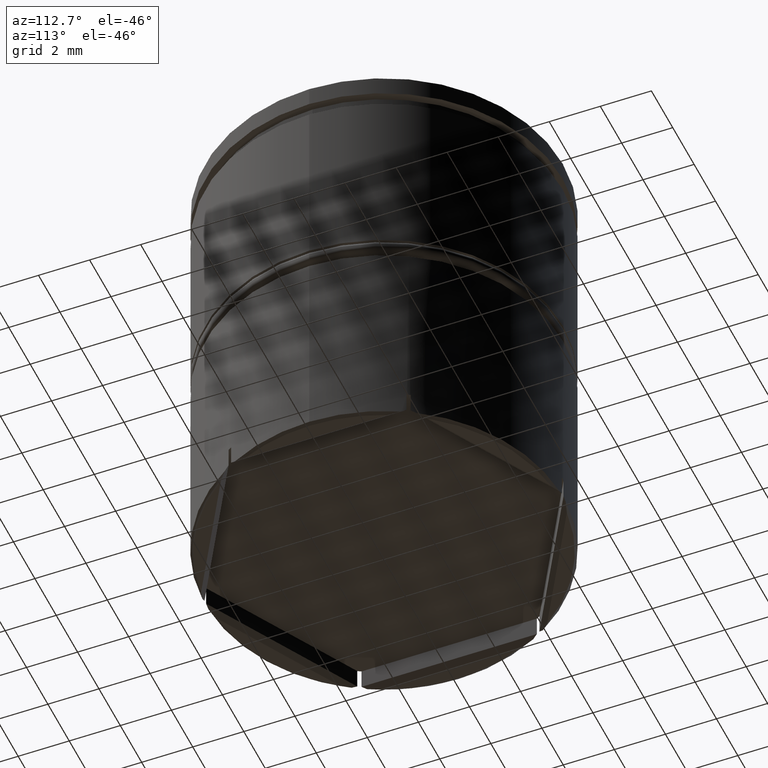
[diagram: clean part render]
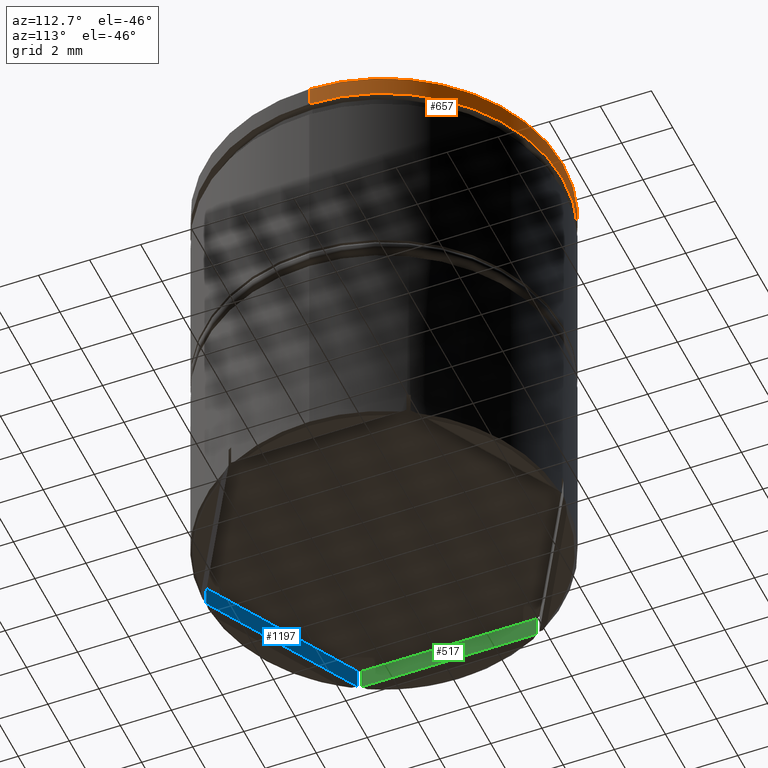
[diagram: same view with three faces highlighted in distinct colors, each labeled with its STEP entity id]
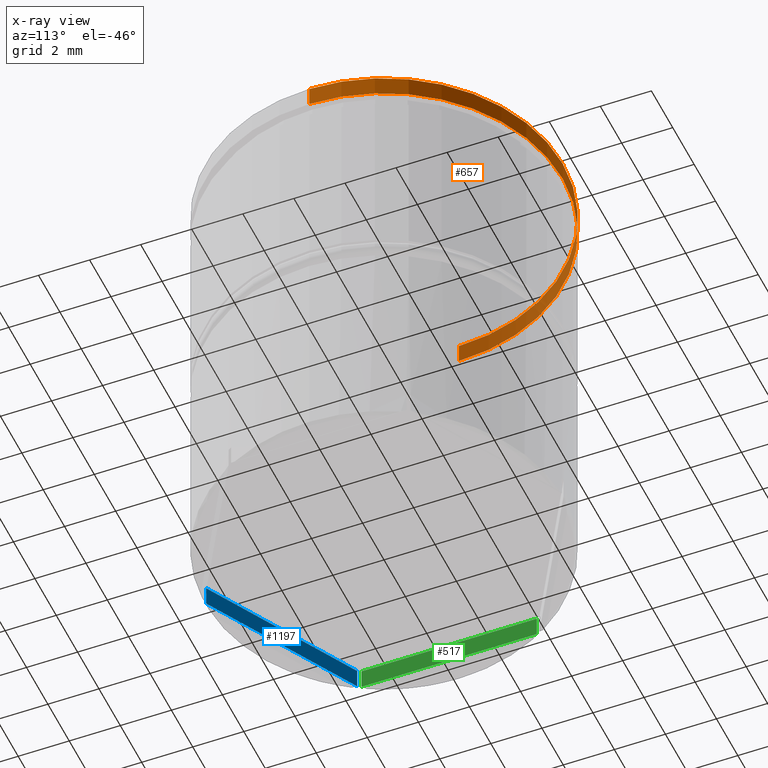
[diagram: x-ray of the same camera — body ghosted, the three highlighted faces saturated]
A machine part, auxiliary view with three faces highlighted in distinct colors.
The next image is the same camera in x-ray (body ghosted, the three faces saturated) — at least one of them is partly hidden behind the body in this view.
Their STEP definitions:

[orange] entity #657 — the highlighted cylindrical surface (partial cylindrical patch) has radius 7 mm, axis along (-0, -0, 1).
#87 = CARTESIAN_POINT ( 'NONE',  ( -7.000000000000000888, 8.572527594031474176E-16, -0.8749999999999998890 ) ) ;
#107 = DIRECTION ( 'NONE',  ( 1.000000000000000000, 0.000000000000000000, 0.000000000000000000 ) ) ;
#164 = ORIENTED_EDGE ( 'NONE', *, *, #1351, .T. ) ;
#196 = EDGE_CURVE ( 'NONE', #721, #1612, #749, .T. ) ;
#219 = CIRCLE ( 'NONE', #1160, 7.000000000000000888 ) ;
#247 = CARTESIAN_POINT ( 'NONE',  ( 0.000000000000000000, 0.000000000000000000, 0.000000000000000000 ) ) ;
#329 = VECTOR ( 'NONE', #365, 1000.000000000000000 ) ;
#342 = ORIENTED_EDGE ( 'NONE', *, *, #392, .T. ) ;
#358 = CARTESIAN_POINT ( 'NONE',  ( -7.000000000000000888, 8.572527594031474176E-16, 0.000000000000000000 ) ) ;
#365 = DIRECTION ( 'NONE',  ( -0.000000000000000000, -0.000000000000000000, 1.000000000000000000 ) ) ;
#392 = EDGE_CURVE ( 'NONE', #1361, #721, #1500, .T. ) ;
#430 = AXIS2_PLACEMENT_3D ( 'NONE', #247, #605, #107 ) ;
#456 = AXIS2_PLACEMENT_3D ( 'NONE', #529, #1283, #1158 ) ;
#529 = CARTESIAN_POINT ( 'NONE',  ( 0.000000000000000000, 0.000000000000000000, -0.1000000000000011297 ) ) ;
#605 = DIRECTION ( 'NONE',  ( -0.000000000000000000, -0.000000000000000000, 1.000000000000000000 ) ) ;
#609 = DIRECTION ( 'NONE',  ( 1.000000000000000000, 0.000000000000000000, 0.000000000000000000 ) ) ;
#657 = ADVANCED_FACE ( 'NONE', ( #860 ), #1630, .T. ) ;
#697 = DIRECTION ( 'NONE',  ( -0.000000000000000000, -0.000000000000000000, 1.000000000000000000 ) ) ;
#721 = VERTEX_POINT ( 'NONE', #936 ) ;
#749 = CIRCLE ( 'NONE', #456, 7.000000000000000888 ) ;
#858 = EDGE_CURVE ( 'NONE', #1298, #1612, #1088, .T. ) ;
#860 = FACE_OUTER_BOUND ( 'NONE', #1097, .T. ) ;
#936 = CARTESIAN_POINT ( 'NONE',  ( -7.000000000000000888, 8.572527594031474176E-16, -0.1000000000000011297 ) ) ;
#985 = DIRECTION ( 'NONE',  ( -0.000000000000000000, -0.000000000000000000, 1.000000000000000000 ) ) ;
#1088 = LINE ( 'NONE', #1360, #1213 ) ;
#1097 = EDGE_LOOP ( 'NONE', ( #164, #342, #1460, #1293 ) ) ;
#1158 = DIRECTION ( 'NONE',  ( 1.000000000000000000, 0.000000000000000000, 0.000000000000000000 ) ) ;
#1160 = AXIS2_PLACEMENT_3D ( 'NONE', #1230, #697, #609 ) ;
#1213 = VECTOR ( 'NONE', #985, 1000.000000000000000 ) ;
#1230 = CARTESIAN_POINT ( 'NONE',  ( 0.000000000000000000, 0.000000000000000000, -0.8749999999999998890 ) ) ;
#1283 = DIRECTION ( 'NONE',  ( 0.000000000000000000, 0.000000000000000000, -1.000000000000000000 ) ) ;
#1293 = ORIENTED_EDGE ( 'NONE', *, *, #858, .F. ) ;
#1298 = VERTEX_POINT ( 'NONE', #1607 ) ;
#1351 = EDGE_CURVE ( 'NONE', #1298, #1361, #219, .T. ) ;
#1360 = CARTESIAN_POINT ( 'NONE',  ( 7.000000000000000888, 0.000000000000000000, 0.000000000000000000 ) ) ;
#1361 = VERTEX_POINT ( 'NONE', #87 ) ;
#1460 = ORIENTED_EDGE ( 'NONE', *, *, #196, .T. ) ;
#1500 = LINE ( 'NONE', #358, #329 ) ;
#1543 = CARTESIAN_POINT ( 'NONE',  ( 7.000000000000000888, 0.000000000000000000, -0.1000000000000011297 ) ) ;
#1607 = CARTESIAN_POINT ( 'NONE',  ( 7.000000000000000888, 0.000000000000000000, -0.8749999999999998890 ) ) ;
#1612 = VERTEX_POINT ( 'NONE', #1543 ) ;
#1630 = CYLINDRICAL_SURFACE ( 'NONE', #430, 7.000000000000000888 ) ;

[blue] entity #1197 — the highlighted planar face has unit normal (-0.5, -0.866, 0).
#24 = LINE ( 'NONE', #497, #270 ) ;
#48 = PLANE ( 'NONE',  #1453 ) ;
#190 = DIRECTION ( 'NONE',  ( -0.5000000000000001110, -0.8660254037844385966, 0.000000000000000000 ) ) ;
#267 = CARTESIAN_POINT ( 'NONE',  ( -0.07636585976015164423, -6.999583434424015316, -16.50000000000000000 ) ) ;
#270 = VECTOR ( 'NONE', #1016, 1000.000000000000114 ) ;
#293 = EDGE_CURVE ( 'NONE', #1541, #416, #1290, .T. ) ;
#300 = VECTOR ( 'NONE', #1018, 1000.000000000000114 ) ;
#369 = CARTESIAN_POINT ( 'NONE',  ( -6.023634140239850332, -3.565926491746141735, 0.000000000000000000 ) ) ;
#416 = VERTEX_POINT ( 'NONE', #1161 ) ;
#421 = EDGE_CURVE ( 'NONE', #1541, #588, #1573, .T. ) ;
#494 = CARTESIAN_POINT ( 'NONE',  ( -0.07636585976015554389, -6.999583434424017092, -17.30000000000000071 ) ) ;
#497 = CARTESIAN_POINT ( 'NONE',  ( -5.842848008753790623, -3.670303413425367367, -17.30000000000000071 ) ) ;
#535 = DIRECTION ( 'NONE',  ( 0.8660254037844385966, -0.5000000000000001110, 0.000000000000000000 ) ) ;
#549 = CARTESIAN_POINT ( 'NONE',  ( 4.363473247675550039E-16, -7.043673284113437738, -16.50000000000000000 ) ) ;
#588 = VERTEX_POINT ( 'NONE', #494 ) ;
#617 = EDGE_CURVE ( 'NONE', #862, #416, #1242, .T. ) ;
#673 = ORIENTED_EDGE ( 'NONE', *, *, #421, .T. ) ;
#683 = DIRECTION ( 'NONE',  ( 0.000000000000000000, 0.000000000000000000, -1.000000000000000000 ) ) ;
#711 = ORIENTED_EDGE ( 'NONE', *, *, #1015, .T. ) ;
#726 = CARTESIAN_POINT ( 'NONE',  ( -6.023634140239850332, -3.565926491746141735, -17.30000000000000071 ) ) ;
#790 = EDGE_LOOP ( 'NONE', ( #673, #711, #1528, #1604 ) ) ;
#851 = DIRECTION ( 'NONE',  ( -0.000000000000000000, -0.000000000000000000, 1.000000000000000000 ) ) ;
#862 = VERTEX_POINT ( 'NONE', #726 ) ;
#1015 = EDGE_CURVE ( 'NONE', #588, #862, #24, .T. ) ;
#1016 = DIRECTION ( 'NONE',  ( -0.8660254037844385966, 0.5000000000000001110, 0.000000000000000000 ) ) ;
#1018 = DIRECTION ( 'NONE',  ( -0.8660254037844385966, 0.5000000000000001110, 0.000000000000000000 ) ) ;
#1086 = VECTOR ( 'NONE', #851, 1000.000000000000000 ) ;
#1154 = FACE_OUTER_BOUND ( 'NONE', #790, .T. ) ;
#1161 = CARTESIAN_POINT ( 'NONE',  ( -6.023634140239851220, -3.565926491746138183, -16.50000000000000000 ) ) ;
#1184 = CARTESIAN_POINT ( 'NONE',  ( -0.07636585976015554389, -6.999583434424017092, 0.000000000000000000 ) ) ;
#1197 = ADVANCED_FACE ( 'NONE', ( #1154 ), #48, .F. ) ;
#1242 = LINE ( 'NONE', #369, #1086 ) ;
#1252 = CARTESIAN_POINT ( 'NONE',  ( 4.363473247675550039E-16, -7.043673284113437738, -16.50000000000000000 ) ) ;
#1290 = LINE ( 'NONE', #1252, #300 ) ;
#1332 = VECTOR ( 'NONE', #683, 1000.000000000000000 ) ;
#1453 = AXIS2_PLACEMENT_3D ( 'NONE', #549, #190, #535 ) ;
#1528 = ORIENTED_EDGE ( 'NONE', *, *, #617, .T. ) ;
#1541 = VERTEX_POINT ( 'NONE', #267 ) ;
#1573 = LINE ( 'NONE', #1184, #1332 ) ;
#1604 = ORIENTED_EDGE ( 'NONE', *, *, #293, .F. ) ;

[green] entity #517 — the highlighted planar face has unit normal (-1, 0, 0).
#29 = EDGE_LOOP ( 'NONE', ( #899, #1094, #776, #423 ) ) ;
#96 = LINE ( 'NONE', #1458, #374 ) ;
#139 = VECTOR ( 'NONE', #923, 1000.000000000000000 ) ;
#184 = EDGE_CURVE ( 'NONE', #844, #1066, #405, .T. ) ;
#265 = VERTEX_POINT ( 'NONE', #1555 ) ;
#285 = CARTESIAN_POINT ( 'NONE',  ( -6.100000000000003197, 3.224903099319419209, -17.30000000000000071 ) ) ;
#317 = CARTESIAN_POINT ( 'NONE',  ( -6.100000000000003197, -3.521836642056717537, -16.50000000000000000 ) ) ;
#374 = VECTOR ( 'NONE', #732, 1000.000000000000000 ) ;
#405 = LINE ( 'NONE', #285, #1408 ) ;
#423 = ORIENTED_EDGE ( 'NONE', *, *, #847, .F. ) ;
#517 = ADVANCED_FACE ( 'NONE', ( #719 ), #564, .F. ) ;
#564 = PLANE ( 'NONE',  #1569 ) ;
#714 = CARTESIAN_POINT ( 'NONE',  ( -6.100000000000003197, 3.433656942677875357, -16.50000000000000000 ) ) ;
#719 = FACE_OUTER_BOUND ( 'NONE', #29, .T. ) ;
#732 = DIRECTION ( 'NONE',  ( 0.000000000000000000, 0.000000000000000000, -1.000000000000000000 ) ) ;
#769 = DIRECTION ( 'NONE',  ( 0.000000000000000000, 1.000000000000000000, 0.000000000000000000 ) ) ;
#776 = ORIENTED_EDGE ( 'NONE', *, *, #1618, .T. ) ;
#814 = LINE ( 'NONE', #1295, #139 ) ;
#844 = VERTEX_POINT ( 'NONE', #1096 ) ;
#847 = EDGE_CURVE ( 'NONE', #265, #966, #864, .T. ) ;
#864 = LINE ( 'NONE', #1225, #1626 ) ;
#899 = ORIENTED_EDGE ( 'NONE', *, *, #1343, .T. ) ;
#923 = DIRECTION ( 'NONE',  ( -0.000000000000000000, -0.000000000000000000, 1.000000000000000000 ) ) ;
#953 = DIRECTION ( 'NONE',  ( -1.000000000000000000, 0.000000000000000000, 0.000000000000000000 ) ) ;
#966 = VERTEX_POINT ( 'NONE', #714 ) ;
#1066 = VERTEX_POINT ( 'NONE', #1146 ) ;
#1094 = ORIENTED_EDGE ( 'NONE', *, *, #184, .T. ) ;
#1096 = CARTESIAN_POINT ( 'NONE',  ( -6.100000000000003197, -3.433656942677875357, -17.30000000000000071 ) ) ;
#1146 = CARTESIAN_POINT ( 'NONE',  ( -6.100000000000003197, 3.433656942677875357, -17.30000000000000071 ) ) ;
#1225 = CARTESIAN_POINT ( 'NONE',  ( -6.100000000000003197, -3.521836642056717537, -16.50000000000000000 ) ) ;
#1295 = CARTESIAN_POINT ( 'NONE',  ( -6.100000000000003197, 3.433656942677875357, 0.000000000000000000 ) ) ;
#1343 = EDGE_CURVE ( 'NONE', #265, #844, #96, .T. ) ;
#1408 = VECTOR ( 'NONE', #769, 1000.000000000000000 ) ;
#1458 = CARTESIAN_POINT ( 'NONE',  ( -6.100000000000003197, -3.433656942677875357, 0.000000000000000000 ) ) ;
#1464 = DIRECTION ( 'NONE',  ( 0.000000000000000000, 0.000000000000000000, 1.000000000000000000 ) ) ;
#1555 = CARTESIAN_POINT ( 'NONE',  ( -6.100000000000003197, -3.433656942677875357, -16.50000000000000000 ) ) ;
#1569 = AXIS2_PLACEMENT_3D ( 'NONE', #317, #953, #1464 ) ;
#1609 = DIRECTION ( 'NONE',  ( 0.000000000000000000, 1.000000000000000000, 0.000000000000000000 ) ) ;
#1618 = EDGE_CURVE ( 'NONE', #1066, #966, #814, .T. ) ;
#1626 = VECTOR ( 'NONE', #1609, 1000.000000000000000 ) ;